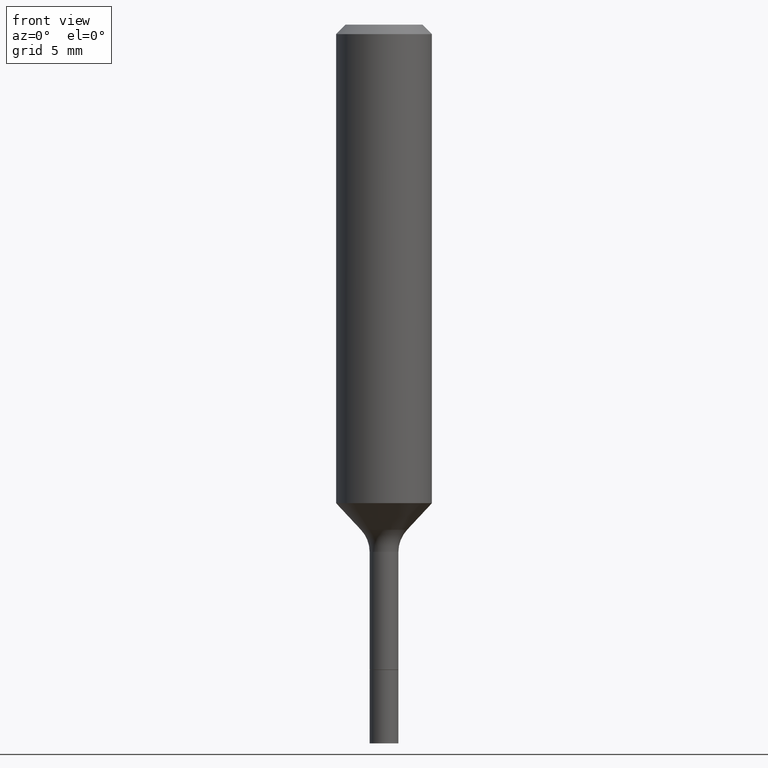
[diagram: clean part render]
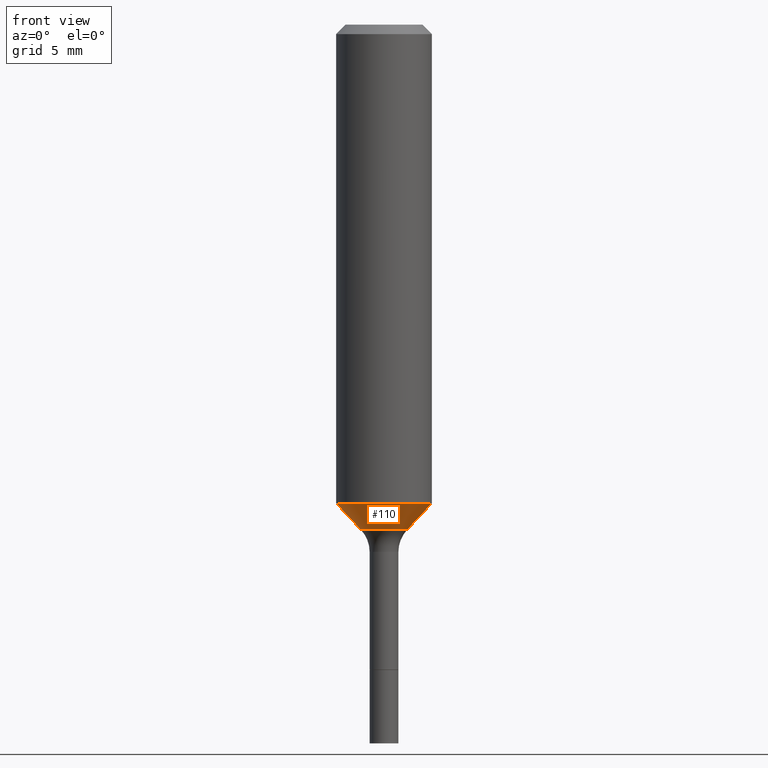
[diagram: same view with one face highlighted and labeled with its STEP entity id]
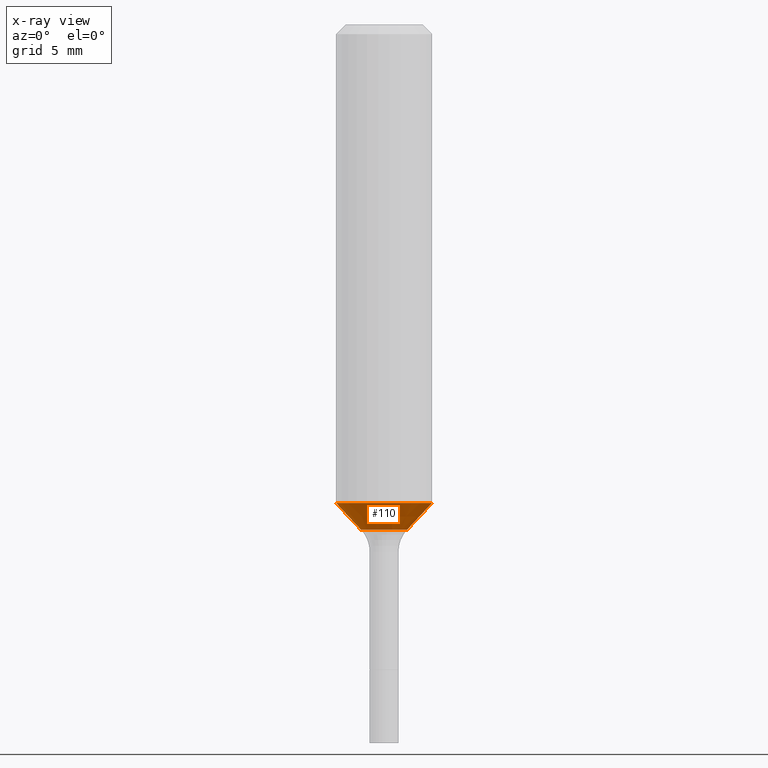
[diagram: x-ray of the same camera — body ghosted, the highlighted face saturated]
A machine part, front view. The second image highlights one B-rep face of the part: STEP entity #110.
The next image is the same camera in x-ray: the body ghosted, the highlighted face saturated — about 0% of this face is hidden behind the body in this view.
In plain terms, the highlighted conical surface has half-angle 43 deg.
Its self-contained STEP definition (entity closure, byte-faithful):
#31 = AXIS2_PLACEMENT_3D ( 'NONE', #246, #296, #47 ) ;
#36 = VERTEX_POINT ( 'NONE', #212 ) ;
#47 = DIRECTION ( 'NONE',  ( 1.000000000000000000, -6.982962677686273021E-15, 0.000000000000000000 ) ) ;
#68 = CARTESIAN_POINT ( 'NONE',  ( 2.884567129420502109E-29, -4.118397371309408628E-15, -1.179555888067264524 ) ) ;
#70 = DIRECTION ( 'NONE',  ( -2.445468806185136597E-29, 3.491481338843145583E-15, 1.000000000000000000 ) ) ;
#95 = CARTESIAN_POINT ( 'NONE',  ( -0.05694170387046649379, -3.942788391842422324E-15, -1.245140131195000333 ) ) ;
#110 = ADVANCED_FACE ( 'NONE', ( #375 ), #390, .T. ) ;
#123 = DIRECTION ( 'NONE',  ( 1.000000000000000000, -6.982962677686273021E-15, 0.000000000000000000 ) ) ;
#150 = CARTESIAN_POINT ( 'NONE',  ( 0.05694170387046649379, -4.745005325243381161E-15, -1.245140131195000333 ) ) ;
#186 = CARTESIAN_POINT ( 'NONE',  ( -0.1181000000000001354, -3.279246400376729248E-15, -1.179555888067264524 ) ) ;
#194 = EDGE_CURVE ( 'NONE', #311, #462, #459, .T. ) ;
#201 = ORIENTED_EDGE ( 'NONE', *, *, #400, .T. ) ;
#211 = CARTESIAN_POINT ( 'NONE',  ( -0.05694170387046643828, -3.942788391842422324E-15, -1.245140131195000333 ) ) ;
#212 = CARTESIAN_POINT ( 'NONE',  ( 0.1181000000000001354, -4.943085263544158468E-15, -1.179555888067264524 ) ) ;
#215 = DIRECTION ( 'NONE',  ( -0.6819983600624978104, 7.399397606724286576E-15, 0.7313537016191710149 ) ) ;
#240 = AXIS2_PLACEMENT_3D ( 'NONE', #261, #487, #123 ) ;
#246 = CARTESIAN_POINT ( 'NONE',  ( 3.044951350166641227E-29, -4.347383532312049754E-15, -1.245140131195000333 ) ) ;
#249 = VECTOR ( 'NONE', #316, 39.37007874015748854 ) ;
#258 = ORIENTED_EDGE ( 'NONE', *, *, #194, .F. ) ;
#261 = CARTESIAN_POINT ( 'NONE',  ( 3.044951350166641227E-29, -4.347383532312049754E-15, -1.245140131195000333 ) ) ;
#275 = DIRECTION ( 'NONE',  ( 1.000000000000000000, -6.982962677686265133E-15, 0.000000000000000000 ) ) ;
#276 = EDGE_CURVE ( 'NONE', #311, #323, #348, .T. ) ;
#296 = DIRECTION ( 'NONE',  ( -2.445468806185136597E-29, 3.491481338843145583E-15, 1.000000000000000000 ) ) ;
#311 = VERTEX_POINT ( 'NONE', #211 ) ;
#316 = DIRECTION ( 'NONE',  ( 0.6819983600624978104, -2.208861293262468309E-15, 0.7313537016191710149 ) ) ;
#318 = EDGE_LOOP ( 'NONE', ( #258, #485, #201, #384 ) ) ;
#323 = VERTEX_POINT ( 'NONE', #336 ) ;
#336 = CARTESIAN_POINT ( 'NONE',  ( 0.05694170387046643828, -4.745005325243380372E-15, -1.245140131195000333 ) ) ;
#348 = CIRCLE ( 'NONE', #31, 0.05694170387046649379 ) ;
#349 = LINE ( 'NONE', #150, #249 ) ;
#359 = EDGE_CURVE ( 'NONE', #462, #36, #378, .T. ) ;
#375 = FACE_OUTER_BOUND ( 'NONE', #318, .T. ) ;
#378 = CIRCLE ( 'NONE', #466, 0.1181000000000001354 ) ;
#384 = ORIENTED_EDGE ( 'NONE', *, *, #359, .F. ) ;
#390 = CONICAL_SURFACE ( 'NONE', #240, 0.05694170387046649379, 0.7504915783575608623 ) ;
#400 = EDGE_CURVE ( 'NONE', #323, #36, #349, .T. ) ;
#424 = VECTOR ( 'NONE', #215, 39.37007874015748854 ) ;
#459 = LINE ( 'NONE', #95, #424 ) ;
#462 = VERTEX_POINT ( 'NONE', #186 ) ;
#466 = AXIS2_PLACEMENT_3D ( 'NONE', #68, #70, #275 ) ;
#485 = ORIENTED_EDGE ( 'NONE', *, *, #276, .T. ) ;
#487 = DIRECTION ( 'NONE',  ( -2.445468806185136597E-29, 3.491481338843145583E-15, 1.000000000000000000 ) ) ;